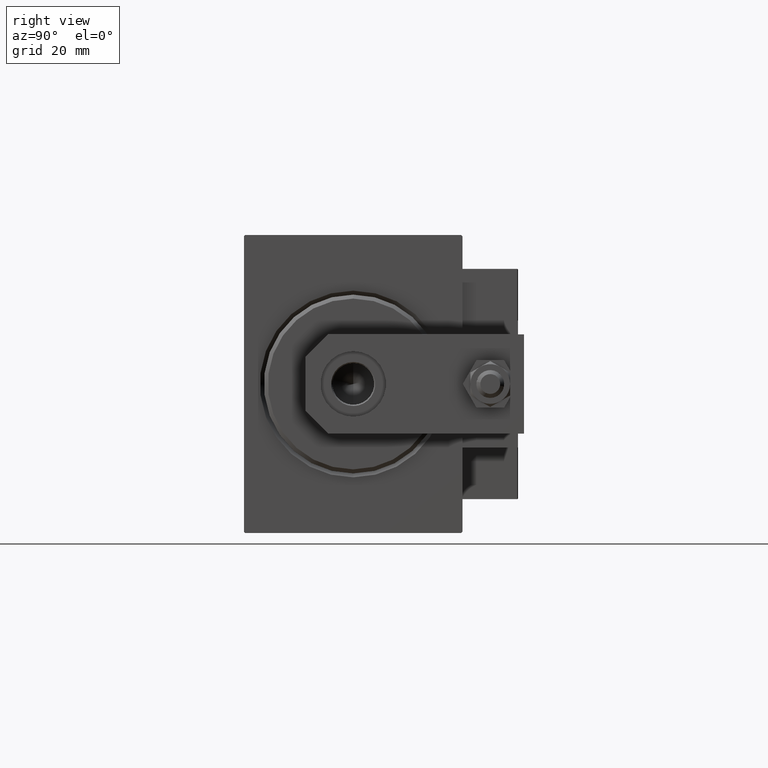
[diagram: clean part render]
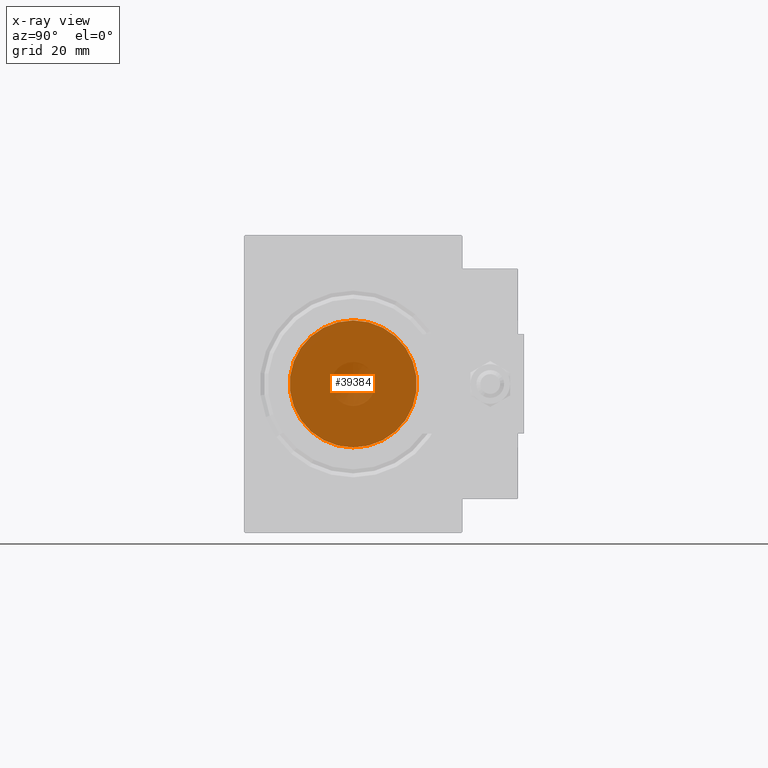
[diagram: x-ray — body ghosted, one internal face saturated and labeled with its STEP entity id]
A machine part, right view, then the same camera in x-ray: the body is ghosted and one INTERNAL B-rep face — a face not visible from any outside direction — is saturated and labeled: STEP entity #39384.
In plain terms, the highlighted planar face has unit normal (1, 0, -0).
Its self-contained STEP definition (entity closure, byte-faithful):
#485 = PLANE ( 'NONE',  #8064 ) ;
#2626 = DIRECTION ( 'NONE',  ( 0.000000000000000000, 0.000000000000000000, 1.000000000000000000 ) ) ;
#8064 = AXIS2_PLACEMENT_3D ( 'NONE', #30055, #15493, #26775 ) ;
#10578 = VERTEX_POINT ( 'NONE', #29411 ) ;
#12965 = DIRECTION ( 'NONE',  ( 0.000000000000000000, 0.000000000000000000, 1.000000000000000000 ) ) ;
#15493 = DIRECTION ( 'NONE',  ( -1.000000000000000000, 0.000000000000000000, 0.000000000000000000 ) ) ;
#19269 = EDGE_CURVE ( 'NONE', #10578, #33186, #26270, .T. ) ;
#23457 = DIRECTION ( 'NONE',  ( -1.000000000000000000, 0.000000000000000000, 0.000000000000000000 ) ) ;
#23985 = CIRCLE ( 'NONE', #26384, 16.00000000000000000 ) ;
#24132 = EDGE_CURVE ( 'NONE', #33186, #10578, #23985, .T. ) ;
#26270 = CIRCLE ( 'NONE', #41473, 16.00000000000000000 ) ;
#26384 = AXIS2_PLACEMENT_3D ( 'NONE', #35514, #47015, #12965 ) ;
#26775 = DIRECTION ( 'NONE',  ( 0.000000000000000000, 0.000000000000000000, 1.000000000000000000 ) ) ;
#27234 = CARTESIAN_POINT ( 'NONE',  ( 65.00000000000000000, 0.000000000000000000, 0.000000000000000000 ) ) ;
#29411 = CARTESIAN_POINT ( 'NONE',  ( 65.00000000000000000, 1.959434878635765131E-15, -16.00000000000000000 ) ) ;
#30055 = CARTESIAN_POINT ( 'NONE',  ( 65.00000000000000000, 0.000000000000000000, 0.000000000000000000 ) ) ;
#30303 = FACE_OUTER_BOUND ( 'NONE', #48220, .T. ) ;
#31007 = ORIENTED_EDGE ( 'NONE', *, *, #19269, .T. ) ;
#33186 = VERTEX_POINT ( 'NONE', #35476 ) ;
#35476 = CARTESIAN_POINT ( 'NONE',  ( 65.00000000000000000, 0.000000000000000000, 16.00000000000000000 ) ) ;
#35514 = CARTESIAN_POINT ( 'NONE',  ( 65.00000000000000000, 0.000000000000000000, 0.000000000000000000 ) ) ;
#39384 = ADVANCED_FACE ( 'NONE', ( #30303 ), #485, .T. ) ;
#41473 = AXIS2_PLACEMENT_3D ( 'NONE', #27234, #23457, #2626 ) ;
#46467 = ORIENTED_EDGE ( 'NONE', *, *, #24132, .T. ) ;
#47015 = DIRECTION ( 'NONE',  ( -1.000000000000000000, 0.000000000000000000, 0.000000000000000000 ) ) ;
#48220 = EDGE_LOOP ( 'NONE', ( #46467, #31007 ) ) ;